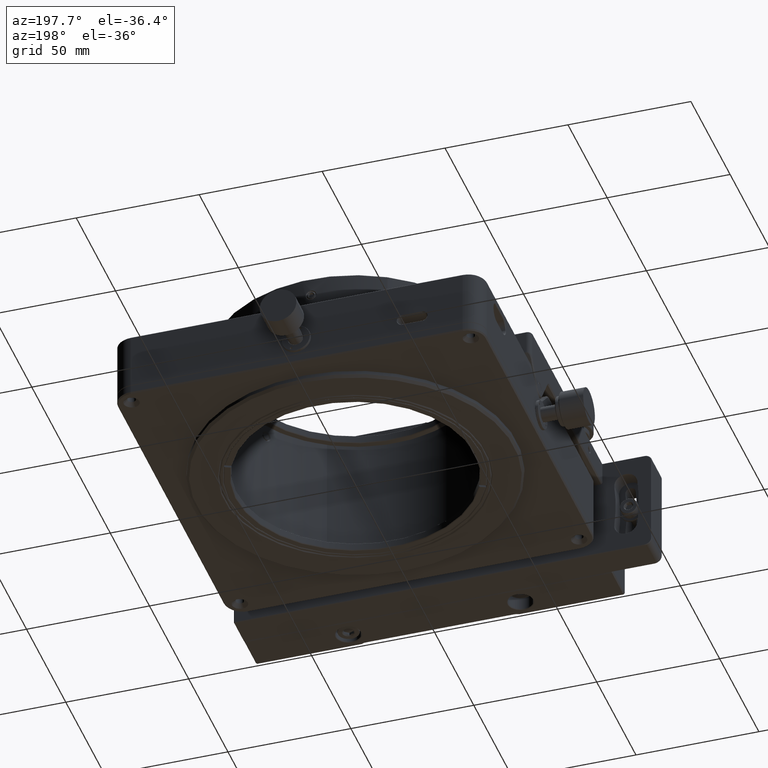
[diagram: clean part render]
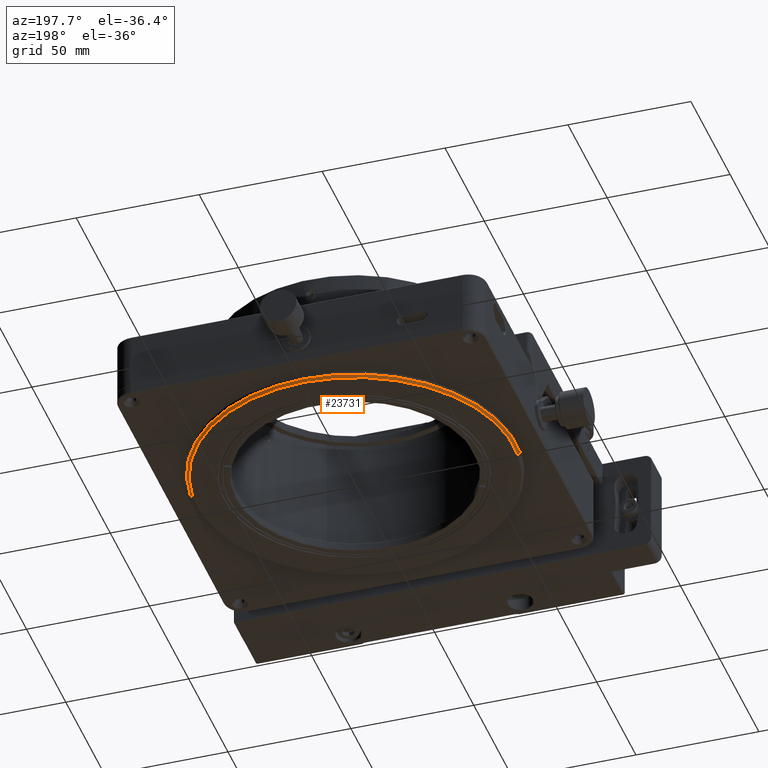
[diagram: same view with one face highlighted and labeled with its STEP entity id]
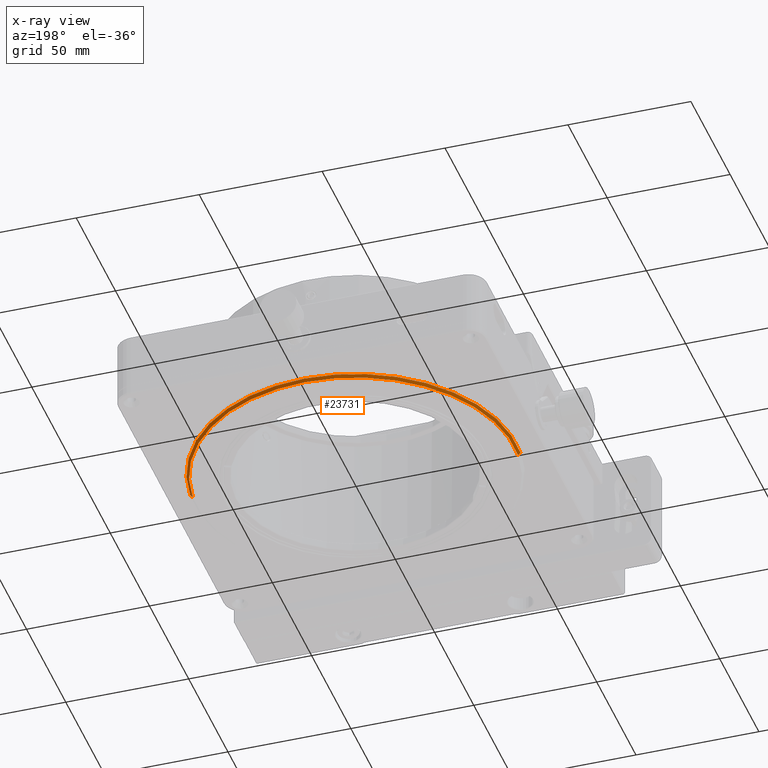
[diagram: x-ray of the same camera — body ghosted, the highlighted face saturated]
A machine part, auxiliary view. The second image highlights one B-rep face of the part: STEP entity #23731.
The next image is the same camera in x-ray: the body ghosted, the highlighted face saturated — about 0% of this face is hidden behind the body in this view.
In plain terms, the highlighted conical surface has half-angle 45 deg.
Its self-contained STEP definition (entity closure, byte-faithful):
#230 = AXIS2_PLACEMENT_3D ( 'NONE', #8006, #14108, #2312 ) ;
#685 = CARTESIAN_POINT ( 'NONE',  ( -64.21380362434479139, 94.83061583897570301, -24.00000000000000000 ) ) ;
#2312 = DIRECTION ( 'NONE',  ( -0.9955628468890656002, -0.09409897924068508224, 0.000000000000000000 ) ) ;
#2944 = VERTEX_POINT ( 'NONE', #43820 ) ;
#3985 = DIRECTION ( 'NONE',  ( 9.299329224505699055E-18, -9.838647296297899075E-17, 1.000000000000000000 ) ) ;
#6150 = EDGE_CURVE ( 'NONE', #61374, #61189, #26728, .T. ) ;
#7930 = ORIENTED_EDGE ( 'NONE', *, *, #6150, .T. ) ;
#8006 = CARTESIAN_POINT ( 'NONE',  ( -5.557524842889789214E-14, 100.9000000000000057, -24.00000000000000000 ) ) ;
#9642 = VECTOR ( 'NONE', #77953, 1000.000000000000114 ) ;
#10673 = LINE ( 'NONE', #49270, #64699 ) ;
#11448 = DIRECTION ( 'NONE',  ( 9.299329224505709840E-18, -9.838647296297899075E-17, 1.000000000000000000 ) ) ;
#13143 = AXIS2_PLACEMENT_3D ( 'NONE', #53974, #3985, #16167 ) ;
#14108 = DIRECTION ( 'NONE',  ( -9.299329224505699055E-18, 9.838647296297899075E-17, -1.000000000000000000 ) ) ;
#16167 = DIRECTION ( 'NONE',  ( 0.9955628468890656002, 0.09409897924068508224, 0.000000000000000000 ) ) ;
#16610 = EDGE_CURVE ( 'NONE', #2944, #48599, #10673, .T. ) ;
#23479 = CARTESIAN_POINT ( 'NONE',  ( -65.20936647123389207, 94.73651685973500491, -23.00000000000000000 ) ) ;
#23731 = ADVANCED_FACE ( 'NONE', ( #59679 ), #61206, .T. ) ;
#26728 = LINE ( 'NONE', #34444, #9642 ) ;
#34444 = CARTESIAN_POINT ( 'NONE',  ( -64.21380362434479139, 94.83061583897570301, -24.00000000000000000 ) ) ;
#37073 = ORIENTED_EDGE ( 'NONE', *, *, #51679, .F. ) ;
#41956 = CARTESIAN_POINT ( 'NONE',  ( -5.555280923823089390E-14, 100.9000000000000057, -23.00000000000000000 ) ) ;
#43820 = CARTESIAN_POINT ( 'NONE',  ( 64.21380362434470612, 106.9693841610239957, -24.00000000000000000 ) ) ;
#46432 = CARTESIAN_POINT ( 'NONE',  ( 65.20936647123379259, 107.0634831402648075, -23.00000000000000000 ) ) ;
#48599 = VERTEX_POINT ( 'NONE', #46432 ) ;
#49270 = CARTESIAN_POINT ( 'NONE',  ( 64.21380362434470612, 106.9693841610239957, -24.00000000000000000 ) ) ;
#51679 = EDGE_CURVE ( 'NONE', #48599, #61189, #62231, .T. ) ;
#53974 = CARTESIAN_POINT ( 'NONE',  ( -5.557524842889789214E-14, 100.9000000000000057, -24.00000000000000000 ) ) ;
#54539 = DIRECTION ( 'NONE',  ( -0.9955628468890654892, -0.09409897924068512387, 0.000000000000000000 ) ) ;
#56011 = EDGE_CURVE ( 'NONE', #61374, #2944, #58702, .T. ) ;
#58702 = CIRCLE ( 'NONE', #230, 64.50000000000002842 ) ;
#59679 = FACE_OUTER_BOUND ( 'NONE', #64473, .T. ) ;
#61189 = VERTEX_POINT ( 'NONE', #23479 ) ;
#61206 = CONICAL_SURFACE ( 'NONE', #13143, 64.50000000000002842, 0.7853981633974547183 ) ;
#61374 = VERTEX_POINT ( 'NONE', #685 ) ;
#62231 = CIRCLE ( 'NONE', #75249, 65.50000000000004263 ) ;
#64473 = EDGE_LOOP ( 'NONE', ( #64879, #7930, #37073, #77141 ) ) ;
#64699 = VECTOR ( 'NONE', #74073, 1000.000000000000114 ) ;
#64879 = ORIENTED_EDGE ( 'NONE', *, *, #56011, .F. ) ;
#74073 = DIRECTION ( 'NONE',  ( 0.7039692401326477222, 0.06653802632382097015, 0.7071067811865425767 ) ) ;
#75249 = AXIS2_PLACEMENT_3D ( 'NONE', #41956, #11448, #54539 ) ;
#77141 = ORIENTED_EDGE ( 'NONE', *, *, #16610, .F. ) ;
#77953 = DIRECTION ( 'NONE',  ( -0.7039692401326477222, -0.06653802632382097015, 0.7071067811865425767 ) ) ;